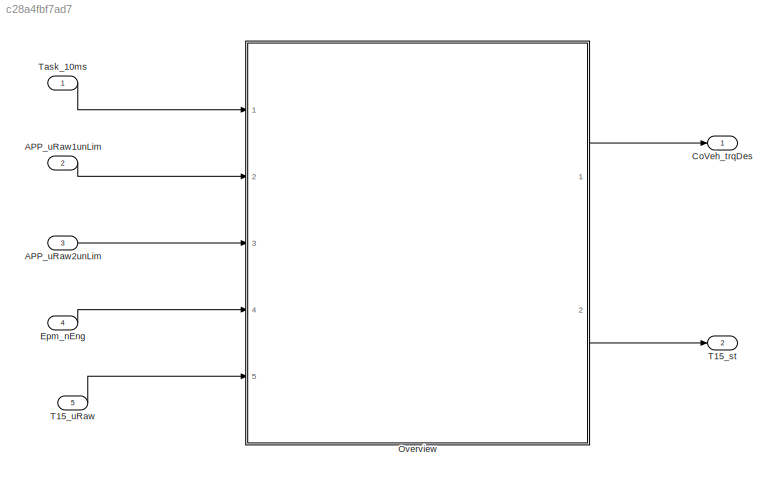
MODEL slx_c28a4fbf7ad7
KIND model
CONFIG AbsTol = auto
CONFIG EnableMultiTasking = off
CONFIG FixedStep = auto
CONFIG MaxStep = auto
CONFIG MinStep = auto
CONFIG RelTol = 1e-3
CONFIG SampleTimeConstraint = Unconstrained
CONFIG SolverName = VariableStepAuto
CONFIG StartTime = 0.0
CONFIG StopTime = 10.0
BLOCK [Inport] APP_uRaw1unLim
  Port = 2
BLOCK [Inport] APP_uRaw2unLim
  Port = 3
BLOCK [Outport] CoVeh_trqDes
BLOCK [Inport] Epm_nEng
  Port = 4
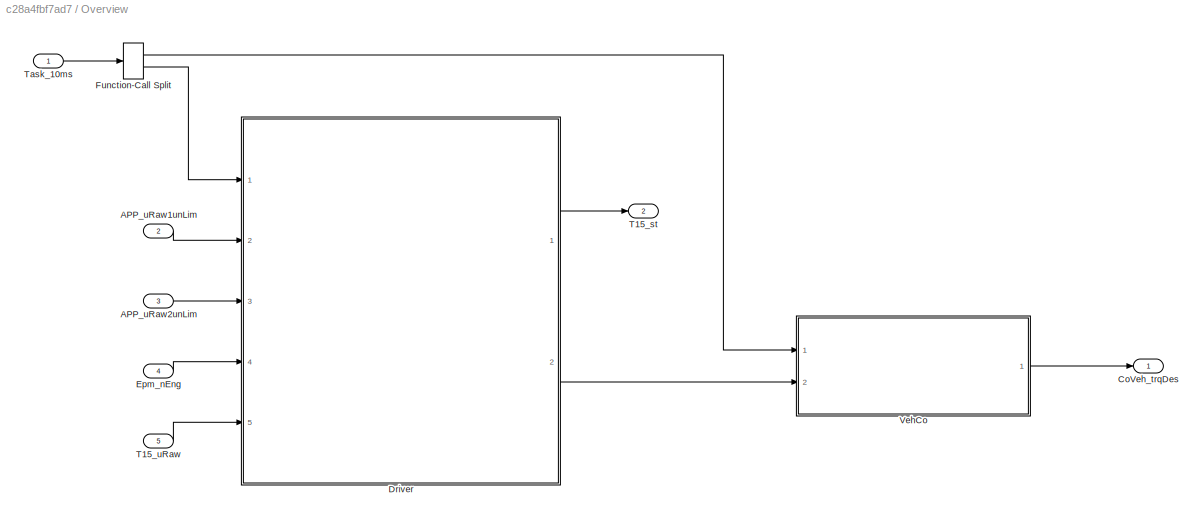
BLOCK [SubSystem] Overview
  Ports = [5, 2]
  RequestExecContextInheritance = off
BLOCK [Inport] Overview/APP_uRaw1unLim
  Port = 2
BLOCK [Inport] Overview/APP_uRaw2unLim
  Port = 3
BLOCK [Outport] Overview/CoVeh_trqDes
  VectorParamsAs1DForOutWhenUnconnected = off
BLOCK [ModelReference] Overview/Driver
  ModelNameDialog = Driver
  ModelReferenceVersion = 6.2
  Ports = [5, 2]
  ScheduleRates = on
BLOCK [Inport] Overview/Epm_nEng
  Port = 4
BLOCK [FunctionCallSplit] Overview/Function-Call Split
  IconShape = distinctive
  NumOutputPorts = 2
  OutputPortLayout = default
  Ports = [1, 2]
BLOCK [Outport] Overview/T15_st
  Port = 2
BLOCK [Inport] Overview/T15_uRaw
  Port = 5
BLOCK [Inport] Overview/Task_10ms
BLOCK [ModelReference] Overview/VehCo
  ModelNameDialog = VehCo
  ModelReferenceVersion = 6.0
  Ports = [2, 1]
  ScheduleRates = on
BLOCK [Outport] T15_st
  Port = 2
BLOCK [Inport] T15_uRaw
  Port = 5
BLOCK [Inport] Task_10ms
  OutputFunctionCall = on
LINE APP_uRaw1unLim:1 -> Overview:2
LINE APP_uRaw2unLim:1 -> Overview:3
LINE Epm_nEng:1 -> Overview:4
LINE Overview/APP_uRaw1unLim:1 -> Overview/Driver:2
LINE Overview/APP_uRaw2unLim:1 -> Overview/Driver:3
LINE Overview/Driver:1 -> Overview/T15_st:1
LINE Overview/Driver:2 -> Overview/VehCo:2
LINE Overview/Epm_nEng:1 -> Overview/Driver:4
LINE Overview/Function-Call Split:1 -> Overview/VehCo:1
LINE Overview/Function-Call Split:2 -> Overview/Driver:1
LINE Overview/T15_uRaw:1 -> Overview/Driver:5
LINE Overview/Task_10ms:1 -> Overview/Function-Call Split:1
LINE Overview/VehCo:1 -> Overview/CoVeh_trqDes:1
LINE Overview:1 -> CoVeh_trqDes:1
LINE Overview:2 -> T15_st:1
LINE T15_uRaw:1 -> Overview:5
LINE Task_10ms:1 -> Overview:1
